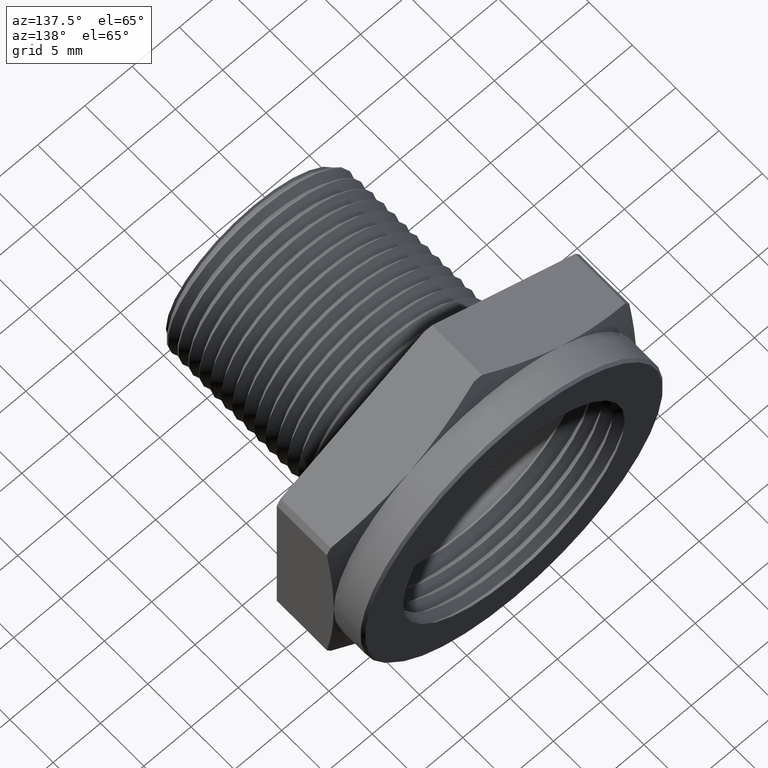
[diagram: clean part render]
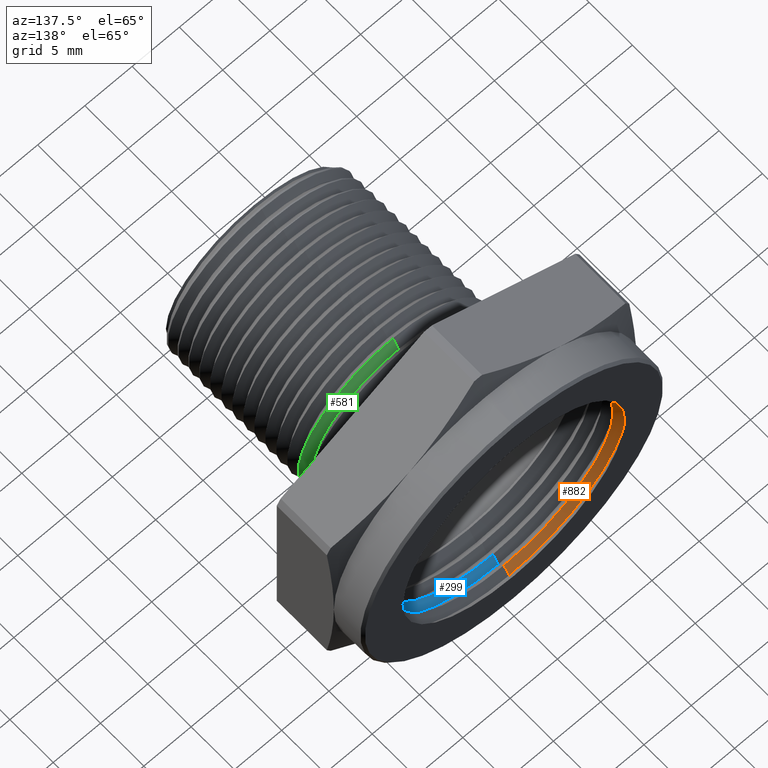
[diagram: same view with three faces highlighted in distinct colors, each labeled with its STEP entity id]
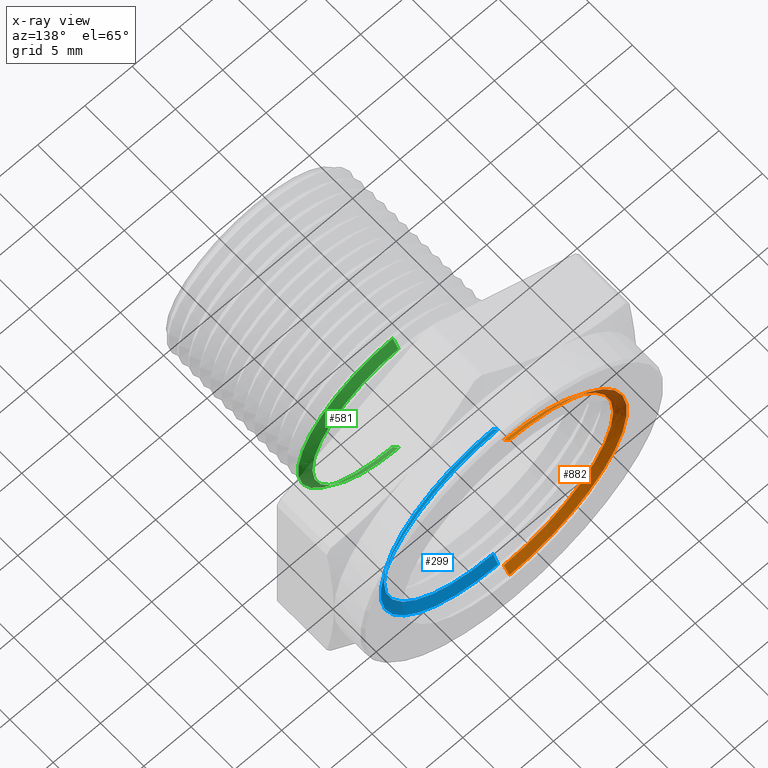
[diagram: x-ray of the same camera — body ghosted, the three highlighted faces saturated]
A machine part, auxiliary view with three faces highlighted in distinct colors.
The next image is the same camera in x-ray (body ghosted, the three faces saturated) — at least one of them is partly hidden behind the body in this view.
Their STEP definitions:

[orange] entity #882 — the highlighted conical surface has half-angle 56.5 deg.
#882 = ADVANCED_FACE ( 'NONE', ( #2526 ), #2523, .F. ) ;
#883 = ORIENTED_EDGE ( 'NONE', *, *, #942, .F. ) ;
#884 = VERTEX_POINT ( 'NONE', #2524 ) ;
#887 = VERTEX_POINT ( 'NONE', #2514 ) ;
#924 = ORIENTED_EDGE ( 'NONE', *, *, #984, .F. ) ;
#942 = EDGE_CURVE ( 'NONE', #884, #887, #2643, .T. ) ;
#945 = VERTEX_POINT ( 'NONE', #2698 ) ;
#946 = ORIENTED_EDGE ( 'NONE', *, *, #983, .T. ) ;
#947 = EDGE_CURVE ( 'NONE', #945, #958, #2697, .T. ) ;
#956 = EDGE_LOOP ( 'NONE', ( #883, #946, #992, #924 ) ) ;
#958 = VERTEX_POINT ( 'NONE', #2676 ) ;
#983 = EDGE_CURVE ( 'NONE', #884, #958, #2749, .T. ) ;
#984 = EDGE_CURVE ( 'NONE', #887, #945, #2745, .T. ) ;
#992 = ORIENTED_EDGE ( 'NONE', *, *, #947, .F. ) ;
#2514 = CARTESIAN_POINT ( 'NONE',  ( 5.782370461143127100E-017, 1.135400686283538000, 0.4543327602977508800 ) ) ;
#2520 = DIRECTION ( 'NONE',  ( 0.0000000000000000000, 0.0000000000000000000, 1.000000000000000000 ) ) ;
#2521 = DIRECTION ( 'NONE',  ( 0.0000000000000000000, 1.000000000000000000, 0.0000000000000000000 ) ) ;
#2522 = AXIS2_PLACEMENT_3D ( 'NONE', #2525, #2521, #2520 ) ;
#2523 = CONICAL_SURFACE ( 'NONE', #2522, 0.4899999999999999900, 0.9861110273767925700 ) ;
#2524 = CARTESIAN_POINT ( 'NONE',  ( 0.0000000000000000000, 1.135400686283538000, -0.4543327602977508800 ) ) ;
#2525 = CARTESIAN_POINT ( 'NONE',  ( 0.0000000000000000000, 1.159008317250162600, 0.0000000000000000000 ) ) ;
#2526 = FACE_OUTER_BOUND ( 'NONE', #956, .T. ) ;
#2640 = DIRECTION ( 'NONE',  ( 0.0000000000000000000, 0.0000000000000000000, 1.000000000000000000 ) ) ;
#2641 = DIRECTION ( 'NONE',  ( 0.0000000000000000000, 1.000000000000000000, 0.0000000000000000000 ) ) ;
#2642 = AXIS2_PLACEMENT_3D ( 'NONE', #2649, #2641, #2640 ) ;
#2643 = CIRCLE ( 'NONE', #2642, 0.4543327602977508800 ) ;
#2649 = CARTESIAN_POINT ( 'NONE',  ( 0.0000000000000000000, 1.135400686283538000, 0.0000000000000000000 ) ) ;
#2676 = CARTESIAN_POINT ( 'NONE',  ( 6.000769315822029800E-017, 1.159008317250162600, -0.4899999999999999900 ) ) ;
#2693 = DIRECTION ( 'NONE',  ( 0.0000000000000000000, 0.0000000000000000000, -1.000000000000000000 ) ) ;
#2694 = DIRECTION ( 'NONE',  ( -0.0000000000000000000, -1.000000000000000000, -0.0000000000000000000 ) ) ;
#2695 = CARTESIAN_POINT ( 'NONE',  ( 0.0000000000000000000, 1.159008317250162600, 0.0000000000000000000 ) ) ;
#2696 = AXIS2_PLACEMENT_3D ( 'NONE', #2695, #2694, #2693 ) ;
#2697 = CIRCLE ( 'NONE', #2696, 0.4899999999999999900 ) ;
#2698 = CARTESIAN_POINT ( 'NONE',  ( 0.0000000000000000000, 1.159008317250162600, 0.4899999999999999900 ) ) ;
#2742 = DIRECTION ( 'NONE',  ( 0.0000000000000000000, 0.5519369853120612600, 0.8338858220671662200 ) ) ;
#2743 = VECTOR ( 'NONE', #2742, 39.37007874015748100 ) ;
#2744 = CARTESIAN_POINT ( 'NONE',  ( 0.0000000000000000000, 1.159008317250162600, 0.4899999999999999900 ) ) ;
#2745 = LINE ( 'NONE', #2744, #2743 ) ;
#2746 = DIRECTION ( 'NONE',  ( 1.021215602848914400E-016, 0.5519369853120612600, -0.8338858220671662200 ) ) ;
#2747 = VECTOR ( 'NONE', #2746, 39.37007874015748100 ) ;
#2748 = CARTESIAN_POINT ( 'NONE',  ( 6.000769315822029800E-017, 1.159008317250162600, -0.4899999999999999900 ) ) ;
#2749 = LINE ( 'NONE', #2748, #2747 ) ;

[blue] entity #299 — the highlighted conical surface has half-angle 56.5 deg.
#83 = EDGE_CURVE ( 'NONE', #996, #998, #1188, .T. ) ;
#299 = ADVANCED_FACE ( 'NONE', ( #1521 ), #1516, .F. ) ;
#352 = EDGE_LOOP ( 'NONE', ( #353, #354, #355, #356 ) ) ;
#353 = ORIENTED_EDGE ( 'NONE', *, *, #993, .F. ) ;
#354 = ORIENTED_EDGE ( 'NONE', *, *, #3210, .F. ) ;
#355 = ORIENTED_EDGE ( 'NONE', *, *, #930, .T. ) ;
#356 = ORIENTED_EDGE ( 'NONE', *, *, #83, .F. ) ;
#926 = VERTEX_POINT ( 'NONE', #2621 ) ;
#930 = EDGE_CURVE ( 'NONE', #986, #998, #2615, .T. ) ;
#986 = VERTEX_POINT ( 'NONE', #2741 ) ;
#993 = EDGE_CURVE ( 'NONE', #926, #996, #2738, .T. ) ;
#996 = VERTEX_POINT ( 'NONE', #2734 ) ;
#998 = VERTEX_POINT ( 'NONE', #2787 ) ;
#1185 = DIRECTION ( 'NONE',  ( 0.0000000000000000000, 0.0000000000000000000, -1.000000000000000000 ) ) ;
#1186 = DIRECTION ( 'NONE',  ( -0.0000000000000000000, -1.000000000000000000, -0.0000000000000000000 ) ) ;
#1187 = AXIS2_PLACEMENT_3D ( 'NONE', #1193, #1186, #1185 ) ;
#1188 = CIRCLE ( 'NONE', #1187, 0.4899999999999999900 ) ;
#1193 = CARTESIAN_POINT ( 'NONE',  ( 0.0000000000000000000, 1.109008317250162600, 0.0000000000000000000 ) ) ;
#1513 = CARTESIAN_POINT ( 'NONE',  ( 0.0000000000000000000, 1.109008317250162600, 0.0000000000000000000 ) ) ;
#1514 = AXIS2_PLACEMENT_3D ( 'NONE', #1513, #1576, #1575 ) ;
#1516 = CONICAL_SURFACE ( 'NONE', #1514, 0.4899999999999999900, 0.9861110273767925700 ) ;
#1521 = FACE_OUTER_BOUND ( 'NONE', #352, .T. ) ;
#1575 = DIRECTION ( 'NONE',  ( 0.0000000000000000000, 0.0000000000000000000, 1.000000000000000000 ) ) ;
#1576 = DIRECTION ( 'NONE',  ( 0.0000000000000000000, 1.000000000000000000, 0.0000000000000000000 ) ) ;
#2612 = DIRECTION ( 'NONE',  ( 0.0000000000000000000, 0.5519369853120612600, 0.8338858220671662200 ) ) ;
#2613 = VECTOR ( 'NONE', #2612, 39.37007874015748100 ) ;
#2614 = CARTESIAN_POINT ( 'NONE',  ( 0.0000000000000000000, 1.109008317250162600, 0.4899999999999999900 ) ) ;
#2615 = LINE ( 'NONE', #2614, #2613 ) ;
#2621 = CARTESIAN_POINT ( 'NONE',  ( 0.0000000000000000000, 1.085400686283537700, -0.4543327602977506600 ) ) ;
#2734 = CARTESIAN_POINT ( 'NONE',  ( 0.0000000000000000000, 1.109008317250162600, -0.4899999999999999900 ) ) ;
#2735 = DIRECTION ( 'NONE',  ( 1.021215602848914400E-016, 0.5519369853120612600, -0.8338858220671662200 ) ) ;
#2736 = VECTOR ( 'NONE', #2735, 39.37007874015748100 ) ;
#2737 = CARTESIAN_POINT ( 'NONE',  ( 6.000769315822029800E-017, 1.109008317250162600, -0.4899999999999999900 ) ) ;
#2738 = LINE ( 'NONE', #2737, #2736 ) ;
#2741 = CARTESIAN_POINT ( 'NONE',  ( 5.782370461143125900E-017, 1.085400686283537700, 0.4543327602977506600 ) ) ;
#2787 = CARTESIAN_POINT ( 'NONE',  ( 6.000769315822029800E-017, 1.109008317250162600, 0.4899999999999999900 ) ) ;
#2821 = DIRECTION ( 'NONE',  ( 0.0000000000000000000, 0.0000000000000000000, 1.000000000000000000 ) ) ;
#2822 = DIRECTION ( 'NONE',  ( 0.0000000000000000000, 1.000000000000000000, 0.0000000000000000000 ) ) ;
#2823 = CARTESIAN_POINT ( 'NONE',  ( 0.0000000000000000000, 1.085400686283537700, 0.0000000000000000000 ) ) ;
#2824 = AXIS2_PLACEMENT_3D ( 'NONE', #2823, #2822, #2821 ) ;
#2825 = CIRCLE ( 'NONE', #2824, 0.4543327602977506600 ) ;
#3210 = EDGE_CURVE ( 'NONE', #986, #926, #2825, .T. ) ;

[green] entity #581 — the highlighted conical surface has half-angle 53.5 deg.
#559 = ORIENTED_EDGE ( 'NONE', *, *, #560, .F. ) ;
#560 = EDGE_CURVE ( 'NONE', #894, #913, #1891, .T. ) ;
#570 = EDGE_LOOP ( 'NONE', ( #583, #582, #574, #559 ) ) ;
#573 = EDGE_CURVE ( 'NONE', #847, #893, #1930, .T. ) ;
#574 = ORIENTED_EDGE ( 'NONE', *, *, #918, .T. ) ;
#581 = ADVANCED_FACE ( 'NONE', ( #1981 ), #1977, .T. ) ;
#582 = ORIENTED_EDGE ( 'NONE', *, *, #573, .T. ) ;
#583 = ORIENTED_EDGE ( 'NONE', *, *, #920, .T. ) ;
#847 = VERTEX_POINT ( 'NONE', #2465 ) ;
#893 = VERTEX_POINT ( 'NONE', #2566 ) ;
#894 = VERTEX_POINT ( 'NONE', #2561 ) ;
#913 = VERTEX_POINT ( 'NONE', #2584 ) ;
#918 = EDGE_CURVE ( 'NONE', #893, #913, #2638, .T. ) ;
#920 = EDGE_CURVE ( 'NONE', #894, #847, #2631, .T. ) ;
#1887 = DIRECTION ( 'NONE',  ( 0.0000000000000000000, -0.5948227867513474800, -0.8038568606172127300 ) ) ;
#1888 = VECTOR ( 'NONE', #1887, 39.37007874015748100 ) ;
#1889 = CARTESIAN_POINT ( 'NONE',  ( 0.0000000000000000000, 0.6200032405425556200, -0.4081670703467500900 ) ) ;
#1891 = LINE ( 'NONE', #1889, #1888 ) ;
#1927 = DIRECTION ( 'NONE',  ( 9.844407313275096200E-017, -0.5948227867513474800, 0.8038568606172127300 ) ) ;
#1928 = VECTOR ( 'NONE', #1927, 39.37007874015748100 ) ;
#1929 = CARTESIAN_POINT ( 'NONE',  ( 4.998604962175000500E-017, 0.6200032405425556200, 0.4081670703467500900 ) ) ;
#1930 = LINE ( 'NONE', #1929, #1928 ) ;
#1972 = DIRECTION ( 'NONE',  ( 0.0000000000000000000, 0.0000000000000000000, -1.000000000000000000 ) ) ;
#1973 = DIRECTION ( 'NONE',  ( -0.0000000000000000000, -1.000000000000000000, -0.0000000000000000000 ) ) ;
#1974 = CARTESIAN_POINT ( 'NONE',  ( 0.0000000000000000000, 0.6200032405425556200, 0.0000000000000000000 ) ) ;
#1975 = AXIS2_PLACEMENT_3D ( 'NONE', #1974, #1973, #1972 ) ;
#1977 = CONICAL_SURFACE ( 'NONE', #1975, 0.4081670703467500900, 0.9337511498169586100 ) ;
#1981 = FACE_OUTER_BOUND ( 'NONE', #570, .T. ) ;
#2465 = CARTESIAN_POINT ( 'NONE',  ( 4.616113702380717100E-017, 0.6563104676866718900, 0.3591006689245971300 ) ) ;
#2561 = CARTESIAN_POINT ( 'NONE',  ( 0.0000000000000000000, 0.6563104676866718900, -0.3591006689245971300 ) ) ;
#2566 = CARTESIAN_POINT ( 'NONE',  ( 4.834512557059620900E-017, 0.6299180986532964000, 0.3947679086268463500 ) ) ;
#2583 = CARTESIAN_POINT ( 'NONE',  ( 0.0000000000000000000, 0.6299180986532964000, 0.0000000000000000000 ) ) ;
#2584 = CARTESIAN_POINT ( 'NONE',  ( 0.0000000000000000000, 0.6299180986532964000, -0.3947679086268463500 ) ) ;
#2627 = DIRECTION ( 'NONE',  ( 0.0000000000000000000, 0.0000000000000000000, -1.000000000000000000 ) ) ;
#2628 = DIRECTION ( 'NONE',  ( -0.0000000000000000000, -1.000000000000000000, -0.0000000000000000000 ) ) ;
#2629 = CARTESIAN_POINT ( 'NONE',  ( 0.0000000000000000000, 0.6563104676866718900, 0.0000000000000000000 ) ) ;
#2630 = AXIS2_PLACEMENT_3D ( 'NONE', #2629, #2628, #2627 ) ;
#2631 = CIRCLE ( 'NONE', #2630, 0.3591006689245971300 ) ;
#2635 = DIRECTION ( 'NONE',  ( 0.0000000000000000000, 0.0000000000000000000, 1.000000000000000000 ) ) ;
#2636 = DIRECTION ( 'NONE',  ( 0.0000000000000000000, 1.000000000000000000, 0.0000000000000000000 ) ) ;
#2637 = AXIS2_PLACEMENT_3D ( 'NONE', #2583, #2636, #2635 ) ;
#2638 = CIRCLE ( 'NONE', #2637, 0.3947679086268463500 ) ;